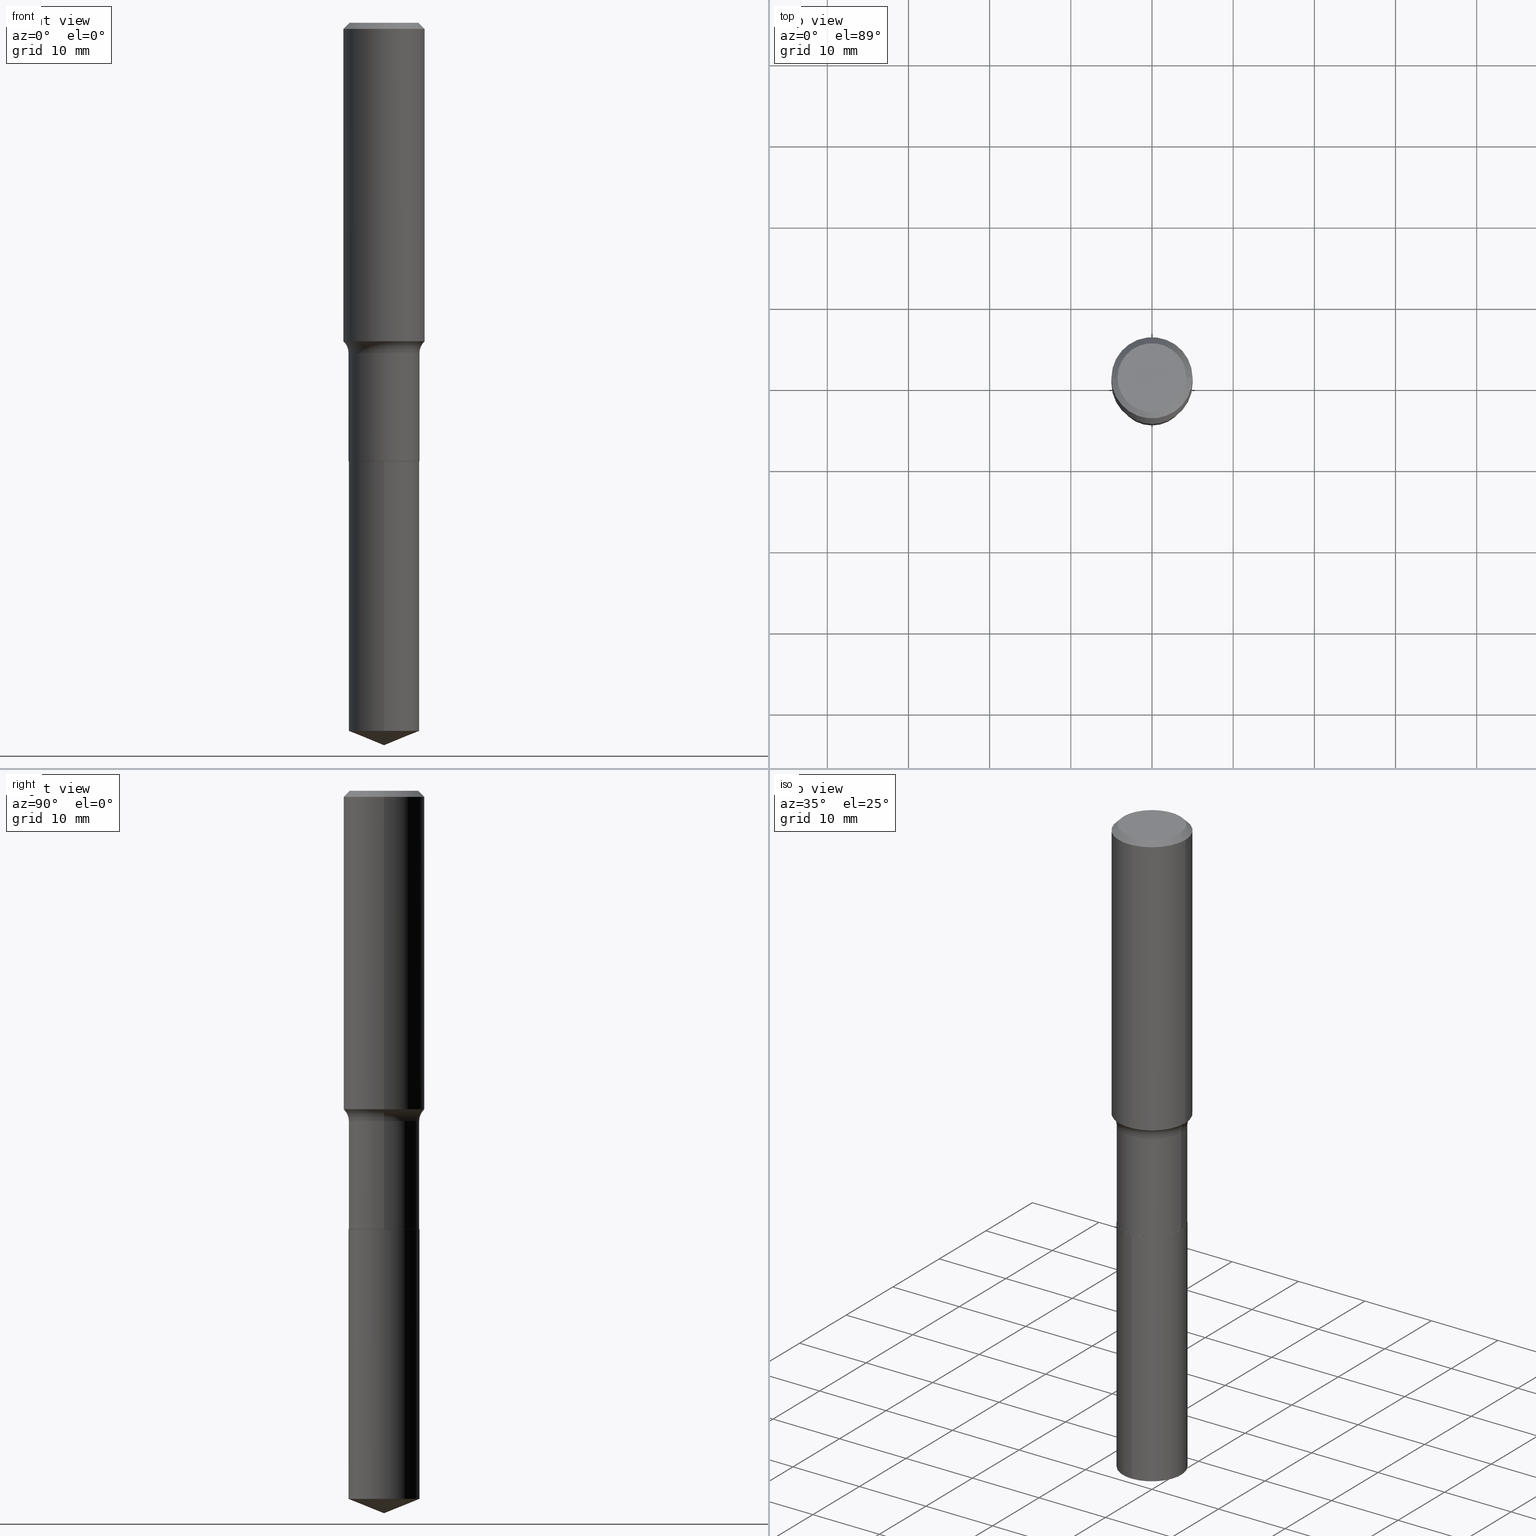
[diagram: canonical four-view strip — front | top / right | iso, engineering-drawing reading convention]
A machine part, canonical four-view strip (front | top / right | iso — engineering-drawing reading convention). The complete STEP part file that produces these views, byte-faithful:
ISO-10303-21;
HEADER;
FILE_DESCRIPTION (( 'STEP AP203' ),
    '1' );
FILE_NAME ('56818.STEP',
    '2024-04-19T14:06:48',
    ( '' ),
    ( '' ),
    'SwSTEP 2.0',
    'SolidWorks 2023',
    '' );
FILE_SCHEMA (( 'CONFIG_CONTROL_DESIGN' ));
ENDSEC;

DATA;
#1 = EDGE_LOOP ( 'NONE', ( #95, #274, #415, #249 ) ) ;
#2 = DATE_TIME_ROLE ( 'classification_date' ) ;
#3 = DIRECTION ( 'NONE',  ( -2.445468806185136597E-29, 3.491481338843145583E-15, 1.000000000000000000 ) ) ;
#4 = SECURITY_CLASSIFICATION_LEVEL ( 'unclassified' ) ;
#5 = EDGE_CURVE ( 'NONE', #108, #154, #196, .T. ) ;
#6 = CIRCLE ( 'NONE', #281, 0.1718999999999999695 ) ;
#7 = TOROIDAL_SURFACE ( 'NONE', #33, 0.2498999999999998722, 0.07799999999999997213 ) ;
#8 = ORIENTED_EDGE ( 'NONE', *, *, #117, .F. ) ;
#9 = PERSON_AND_ORGANIZATION ( #29, #293 ) ;
#10 = EDGE_CURVE ( 'NONE', #80, #401, #70, .T. ) ;
#11 = DIRECTION ( 'NONE',  ( -0.7071067811866199593, 7.493145998870616062E-15, 0.7071067811864750752 ) ) ;
#12 = AXIS2_PLACEMENT_3D ( 'NONE', #192, #3, #82 ) ;
#13 = VECTOR ( 'NONE', #168, 39.37007874015748143 ) ;
#14 = CARTESIAN_POINT ( 'NONE',  ( 3.917396480627969967E-29, -5.593003956692834804E-15, -1.601899999999999880 ) ) ;
#15 = CARTESIAN_POINT ( 'NONE',  ( 7.220858017463212113E-31, -1.030947152326916979E-16, -0.02952750000000020289 ) ) ;
#16 = DIRECTION ( 'NONE',  ( 2.445510554620704519E-29, -3.491421552707238452E-15, -1.000000000000000000 ) ) ;
#17 = LINE ( 'NONE', #321, #172 ) ;
#18 = CARTESIAN_POINT ( 'NONE',  ( 5.198822135068982087E-29, -7.422540178246643119E-15, -2.125899999999999679 ) ) ;
#19 = ORIENTED_EDGE ( 'NONE', *, *, #218, .T. ) ;
#20 = CIRCLE ( 'NONE', #89, 0.07799999999999999989 ) ;
#21 = LINE ( 'NONE', #245, #176 ) ;
#22 = VERTEX_POINT ( 'NONE', #285 ) ;
#23 = EDGE_LOOP ( 'NONE', ( #377, #191, #267, #266 ) ) ;
#24 = CARTESIAN_POINT ( 'NONE',  ( 0.1718999999999999695, -8.621165721871490856E-15, -2.125399999999999956 ) ) ;
#25 = ORIENTED_EDGE ( 'NONE', *, *, #135, .T. ) ;
#26 = CARTESIAN_POINT ( 'NONE',  ( -0.1673224999999999851, 1.219954130253505460E-15, 4.096137381439757534E-18 ) ) ;
#27 = ADVANCED_FACE ( 'NONE', ( #265 ), #484, .T. ) ;
#28 = PERSON_AND_ORGANIZATION ( #29, #293 ) ;
#29 = PERSON ( 'UNSPECIFIED', 'UNSPECIFIED', 'UNSPECIFIED', ('UNSPECIFIED'), ('UNSPECIFIED'), ('UNSPECIFIED') ) ;
#30 = DIRECTION ( 'NONE',  ( 1.000000000000000000, -6.982962677686268288E-15, 4.883557194083112901E-29 ) ) ;
#31 = APPROVAL ( #277, 'UNSPECIFIED' ) ;
#32 = CIRCLE ( 'NONE', #311, 0.07799999999999999989 ) ;
#33 = AXIS2_PLACEMENT_3D ( 'NONE', #14, #425, #88 ) ;
#34 = PERSON_AND_ORGANIZATION_ROLE ( 'creator' ) ;
#35 = DIRECTION ( 'NONE',  ( -6.982962677686266711E-15, -1.000000000000000000, 3.178415350394722068E-15 ) ) ;
#36 = DATE_TIME_ROLE ( 'creation_date' ) ;
#37 = VERTEX_POINT ( 'NONE', #487 ) ;
#38 = ORIENTED_EDGE ( 'NONE', *, *, #226, .F. ) ;
#39 = CC_DESIGN_PERSON_AND_ORGANIZATION_ASSIGNMENT ( #313, #456, ( #361 ) ) ;
#40 = ORIENTED_EDGE ( 'NONE', *, *, #234, .T. ) ;
#41 = FACE_OUTER_BOUND ( 'NONE', #374, .T. ) ;
#42 = VERTEX_POINT ( 'NONE', #227 ) ;
#43 = EDGE_CURVE ( 'NONE', #37, #255, #303, .T. ) ;
#44 = ORIENTED_EDGE ( 'NONE', *, *, #155, .F. ) ;
#45 = APPROVAL_ROLE ( '' ) ;
#46 = AXIS2_PLACEMENT_3D ( 'NONE', #60, #114, #35 ) ;
#47 = DATE_AND_TIME ( #156, #230 ) ;
#48 = EDGE_CURVE ( 'NONE', #153, #395, #440, .T. ) ;
#49 = CYLINDRICAL_SURFACE ( 'NONE', #73, 0.1718999999999999695 ) ;
#50 = DIRECTION ( 'NONE',  ( -2.445468806185136597E-29, 3.491481338843145583E-15, 1.000000000000000000 ) ) ;
#51 = AXIS2_PLACEMENT_3D ( 'NONE', #215, #482, #327 ) ;
#52 = AXIS2_PLACEMENT_3D ( 'NONE', #15, #370, #306 ) ;
#53 = FACE_OUTER_BOUND ( 'NONE', #174, .T. ) ;
#54 = CARTESIAN_POINT ( 'NONE',  ( 0.1673224999999999851, -1.300749711163072594E-15, 4.096137381456741925E-18 ) ) ;
#55 = ADVANCED_FACE ( 'NONE', ( #238 ), #92, .T. ) ;
#56 = ORIENTED_EDGE ( 'NONE', *, *, #310, .T. ) ;
#57 = DIRECTION ( 'NONE',  ( -2.445468806185136597E-29, 3.491481338843145583E-15, 1.000000000000000000 ) ) ;
#58 = EDGE_LOOP ( 'NONE', ( #272, #132 ) ) ;
#59 = CARTESIAN_POINT ( 'NONE',  ( 5.198822135068982087E-29, -7.422540178246643119E-15, -2.125899999999999679 ) ) ;
#60 = CARTESIAN_POINT ( 'NONE',  ( 5.198822135068982087E-29, -7.422540178246643119E-15, -2.125899999999999679 ) ) ;
#61 = FACE_OUTER_BOUND ( 'NONE', #66, .T. ) ;
#62 = AXIS2_PLACEMENT_3D ( 'NONE', #280, #287, #242 ) ;
#63 = CONICAL_SURFACE ( 'NONE', #463, 0.1968500000000000527, 0.7853981633974457255 ) ;
#64 = CARTESIAN_POINT ( 'NONE',  ( 8.398889815641044557E-29, -1.199123249035324259E-14, -3.434447891778936945 ) ) ;
#65 = EDGE_LOOP ( 'NONE', ( #19, #345, #216, #231 ) ) ;
#66 = EDGE_LOOP ( 'NONE', ( #460, #435, #369, #183 ) ) ;
#67 = CARTESIAN_POINT ( 'NONE',  ( -1.001697619218021790E-46, 1.430158722866389718E-32, 4.096137381448108366E-18 ) ) ;
#68 = FACE_OUTER_BOUND ( 'NONE', #23, .T. ) ;
#69 = DIRECTION ( 'NONE',  ( 1.000000000000000000, -6.982962677686266711E-15, 0.000000000000000000 ) ) ;
#70 = CIRCLE ( 'NONE', #422, 0.1718999999999999140 ) ;
#71 = EDGE_CURVE ( 'NONE', #401, #80, #170, .T. ) ;
#72 = CONICAL_SURFACE ( 'NONE', #52, 0.1968500000000000527, 0.7853981633974457255 ) ;
#73 = AXIS2_PLACEMENT_3D ( 'NONE', #163, #319, #203 ) ;
#74 = DIRECTION ( 'NONE',  ( 0.000000000000000000, 0.000000000000000000, 1.000000000000000000 ) ) ;
#75 = DIRECTION ( 'NONE',  ( 1.000000000000000000, 0.000000000000000000, 0.000000000000000000 ) ) ;
#76 =( LENGTH_UNIT ( ) NAMED_UNIT ( * ) SI_UNIT ( $, .METRE. ) );
#77 = ORIENTED_EDGE ( 'NONE', *, *, #71, .F. ) ;
#78 = CONICAL_SURFACE ( 'NONE', #351, 97.44436430772920232, 1.186823891356147742 ) ;
#79 = ADVANCED_FACE ( 'NONE', ( #462 ), #396, .T. ) ;
#80 = VERTEX_POINT ( 'NONE', #159 ) ;
#81 = ADVANCED_FACE ( 'NONE', ( #41 ), #78, .T. ) ;
#82 = DIRECTION ( 'NONE',  ( 1.000000000000000000, -6.982962677686265133E-15, 0.000000000000000000 ) ) ;
#83 = DIRECTION ( 'NONE',  ( 0.7071067811865456854, -7.319954787623249734E-15, -0.7071067811865493491 ) ) ;
#84 = VERTEX_POINT ( 'NONE', #54 ) ;
#85 = AXIS2_PLACEMENT_3D ( 'NONE', #469, #473, #130 ) ;
#86 = DIRECTION ( 'NONE',  ( -6.982962677686266711E-15, -1.000000000000000000, 3.178415350394722068E-15 ) ) ;
#87 = CARTESIAN_POINT ( 'NONE',  ( 3.777561471513221514E-29, -5.393356623794430773E-15, -1.544718731213796659 ) ) ;
#88 = DIRECTION ( 'NONE',  ( 1.000000000000000000, -6.982962677686268288E-15, 4.883557194083112901E-29 ) ) ;
#89 = AXIS2_PLACEMENT_3D ( 'NONE', #466, #468, #320 ) ;
#90 = ADVANCED_FACE ( 'NONE', ( #485 ), #358, .F. ) ;
#91 = DIRECTION ( 'NONE',  ( 1.000000000000000000, -6.982962677686265922E-15, 0.000000000000000000 ) ) ;
#92 = CYLINDRICAL_SURFACE ( 'NONE', #222, 0.1968500000000001082 ) ;
#93 = CARTESIAN_POINT ( 'NONE',  ( 0.1968500000000001082, -1.374596203102542397E-15, 9.598753983154305062E-30 ) ) ;
#94 = DIRECTION ( 'NONE',  ( -2.445468806185136597E-29, 3.491481338843145583E-15, 1.000000000000000000 ) ) ;
#95 = ORIENTED_EDGE ( 'NONE', *, *, #331, .T. ) ;
#96 = ADVANCED_FACE ( 'NONE', ( #326 ), #417, .F. ) ;
#97 = CARTESIAN_POINT ( 'NONE',  ( -1.200371284294217176E-15, -0.1719000000000073802, -2.125899999999999235 ) ) ;
#98 = CARTESIAN_POINT ( 'NONE',  ( 3.917396480627969967E-29, -5.593003956692834804E-15, -1.601899999999999880 ) ) ;
#99 = AXIS2_PLACEMENT_3D ( 'NONE', #241, #50, #205 ) ;
#100 = CIRCLE ( 'NONE', #150, 0.1713999999999999690 ) ;
#101 = PERSON_AND_ORGANIZATION ( #29, #293 ) ;
#102 = CARTESIAN_POINT ( 'NONE',  ( 0.000000000000000000, 0.000000000000000000, 0.000000000000000000 ) ) ;
#103 = DATE_AND_TIME ( #486, #291 ) ;
#104 = VECTOR ( 'NONE', #197, 39.37007874015748143 ) ;
#105 =( GEOMETRIC_REPRESENTATION_CONTEXT ( 3 ) GLOBAL_UNCERTAINTY_ASSIGNED_CONTEXT ( ( #444 ) ) GLOBAL_UNIT_ASSIGNED_CONTEXT ( ( #302, #109, #182 ) ) REPRESENTATION_CONTEXT ( 'NONE', 'WORKASPACE' ) );
#106 = CARTESIAN_POINT ( 'NONE',  ( 5.197599400665889285E-29, -7.420794437577220826E-15, -2.125399999999999956 ) ) ;
#107 = DATE_AND_TIME ( #445, #408 ) ;
#108 = VERTEX_POINT ( 'NONE', #24 ) ;
#109 =( NAMED_UNIT ( * ) PLANE_ANGLE_UNIT ( ) SI_UNIT ( $, .RADIAN. ) );
#110 = ORIENTED_EDGE ( 'NONE', *, *, #184, .T. ) ;
#111 = ORIENTED_EDGE ( 'NONE', *, *, #305, .T. ) ;
#112 = EDGE_CURVE ( 'NONE', #200, #42, #360, .T. ) ;
#113 = CIRCLE ( 'NONE', #379, 0.1968500000000000527 ) ;
#114 = DIRECTION ( 'NONE',  ( -2.445510554620705079E-29, 3.491421552707238058E-15, 1.000000000000000000 ) ) ;
#115 = EDGE_LOOP ( 'NONE', ( #411, #399 ) ) ;
#116 = LINE ( 'NONE', #275, #186 ) ;
#117 = EDGE_CURVE ( 'NONE', #307, #284, #6, .T. ) ;
#118 = ORIENTED_EDGE ( 'NONE', *, *, #48, .F. ) ;
#119 = ORIENTED_EDGE ( 'NONE', *, *, #355, .F. ) ;
#120 = DIRECTION ( 'NONE',  ( -2.445468806185136597E-29, 3.491481338843145583E-15, 1.000000000000000000 ) ) ;
#121 = AXIS2_PLACEMENT_3D ( 'NONE', #474, #409, #86 ) ;
#122 = CC_DESIGN_APPROVAL ( #398, ( #441 ) ) ;
#123 = CARTESIAN_POINT ( 'NONE',  ( 1.221422962771696016E-15, 0.1718999999999925588, -2.125900000000000567 ) ) ;
#124 = CARTESIAN_POINT ( 'NONE',  ( 8.568825988853564616E-29, -1.223359197853089063E-14, -3.503899999999999793 ) ) ;
#125 = DIRECTION ( 'NONE',  ( -0.7071067811865456854, 2.468850131082237733E-15, -0.7071067811865493491 ) ) ;
#126 = DIRECTION ( 'NONE',  ( -2.445510554620705079E-29, 3.491421552707238058E-15, 1.000000000000000000 ) ) ;
#127 = CARTESIAN_POINT ( 'NONE',  ( 0.000000000000000000, 0.000000000000000000, 0.000000000000000000 ) ) ;
#128 = APPROVAL ( #175, 'UNSPECIFIED' ) ;
#129 = CLOSED_SHELL ( 'NONE', ( #424, #344, #81, #27, #146 ) ) ;
#130 = DIRECTION ( 'NONE',  ( 1.000000000000000000, -6.982962677686265922E-15, 0.000000000000000000 ) ) ;
#131 = CC_DESIGN_APPROVAL ( #128, ( #138 ) ) ;
#132 = ORIENTED_EDGE ( 'NONE', *, *, #209, .T. ) ;
#133 = FACE_OUTER_BOUND ( 'NONE', #58, .T. ) ;
#134 = ORIENTED_EDGE ( 'NONE', *, *, #375, .T. ) ;
#135 = EDGE_CURVE ( 'NONE', #395, #200, #330, .T. ) ;
#136 = LINE ( 'NONE', #165, #318 ) ;
#137 = ORIENTED_EDGE ( 'NONE', *, *, #5, .T. ) ;
#138 = PRODUCT_DEFINITION ( 'UNKNOWN', '', #441, #434 ) ;
#139 = PLANE ( 'NONE',  #407 ) ;
#140 = DIRECTION ( 'NONE',  ( -2.445468806185136597E-29, 3.491481338843145583E-15, 1.000000000000000000 ) ) ;
#141 = EDGE_LOOP ( 'NONE', ( #111, #438, #492, #371 ) ) ;
#142 = ORIENTED_EDGE ( 'NONE', *, *, #282, .F. ) ;
#143 = CC_DESIGN_APPROVAL ( #31, ( #361 ) ) ;
#144 = COORDINATED_UNIVERSAL_TIME_OFFSET ( 5, 0, .BEHIND. ) ;
#145 = CARTESIAN_POINT ( 'NONE',  ( 0.000000000000000000, 0.000000000000000000, 0.000000000000000000 ) ) ;
#146 = ADVANCED_FACE ( 'NONE', ( #481 ), #139, .F. ) ;
#147 = CARTESIAN_POINT ( 'NONE',  ( -0.1718999999999999695, -5.285476234363415221E-15, -2.125399999999999956 ) ) ;
#148 = APPROVAL_ROLE ( '' ) ;
#149 = EDGE_LOOP ( 'NONE', ( #119, #134, #483, #229 ) ) ;
#150 = AXIS2_PLACEMENT_3D ( 'NONE', #59, #288, #325 ) ;
#151 = APPROVAL_ROLE ( '' ) ;
#152 = APPLICATION_CONTEXT ( 'configuration controlled 3d designs of mechanical parts and assemblies' ) ;
#153 = VERTEX_POINT ( 'NONE', #179 ) ;
#154 = VERTEX_POINT ( 'NONE', #147 ) ;
#155 = EDGE_CURVE ( 'NONE', #348, #37, #201, .T. ) ;
#156 = CALENDAR_DATE ( 2024, 19, 4 ) ;
#157 = ORIENTED_EDGE ( 'NONE', *, *, #404, .T. ) ;
#158 = EDGE_CURVE ( 'NONE', #84, #200, #116, .T. ) ;
#159 = CARTESIAN_POINT ( 'NONE',  ( -0.1718999999999999140, -5.285476234363416009E-15, -1.601899999999999880 ) ) ;
#160 = ORIENTED_EDGE ( 'NONE', *, *, #331, .F. ) ;
#161 = DIRECTION ( 'NONE',  ( -2.445510554620705079E-29, 3.491421552707238058E-15, 1.000000000000000000 ) ) ;
#162 = DIMENSIONAL_EXPONENTS ( 1.000000000000000000, 0.000000000000000000, 0.000000000000000000, 0.000000000000000000, 0.000000000000000000, 0.000000000000000000, 0.000000000000000000 ) ;
#163 = CARTESIAN_POINT ( 'NONE',  ( 5.198822135068982087E-29, -7.422540178246643119E-15, -2.125899999999999679 ) ) ;
#164 = ADVANCED_FACE ( 'NONE', ( #219 ), #195, .T. ) ;
#165 = CARTESIAN_POINT ( 'NONE',  ( -1.200371284294217176E-15, -0.1719000000000073802, -2.125899999999999235 ) ) ;
#166 = ORIENTED_EDGE ( 'NONE', *, *, #259, .T. ) ;
#167 = LINE ( 'NONE', #353, #187 ) ;
#168 = DIRECTION ( 'NONE',  ( -2.445468806185136877E-29, 3.491481338843145188E-15, 1.000000000000000000 ) ) ;
#169 = DIRECTION ( 'NONE',  ( 1.000000000000000000, -6.982962677686265922E-15, 4.876176775795935793E-29 ) ) ;
#170 = CIRCLE ( 'NONE', #62, 0.1718999999999999140 ) ;
#171 = EDGE_CURVE ( 'NONE', #108, #401, #180, .T. ) ;
#172 = VECTOR ( 'NONE', #11, 39.37007874015748143 ) ;
#173 = DIRECTION ( 'NONE',  ( 0.7071067811866199593, -2.468850131083015945E-15, 0.7071067811864750752 ) ) ;
#174 = EDGE_LOOP ( 'NONE', ( #316, #364, #157, #110 ) ) ;
#175 = APPROVAL_STATUS ( 'not_yet_approved' ) ;
#176 = VECTOR ( 'NONE', #125, 39.37007874015748143 ) ;
#177 = EDGE_CURVE ( 'NONE', #284, #307, #270, .T. ) ;
#178 = APPROVAL_DATE_TIME ( #107, #128 ) ;
#179 = CARTESIAN_POINT ( 'NONE',  ( -0.1968500000000002192, -3.994653248450672985E-15, -1.544718731213796659 ) ) ;
#180 = LINE ( 'NONE', #193, #104 ) ;
#181 = EDGE_LOOP ( 'NONE', ( #221, #439 ) ) ;
#182 =( NAMED_UNIT ( * ) SI_UNIT ( $, .STERADIAN. ) SOLID_ANGLE_UNIT ( ) );
#183 = ORIENTED_EDGE ( 'NONE', *, *, #10, .F. ) ;
#184 = EDGE_CURVE ( 'NONE', #42, #200, #113, .T. ) ;
#185 = ORIENTED_EDGE ( 'NONE', *, *, #305, .F. ) ;
#186 = VECTOR ( 'NONE', #83, 39.37007874015748143 ) ;
#187 = VECTOR ( 'NONE', #387, 39.37007874015748143 ) ;
#188 = DATE_AND_TIME ( #194, #478 ) ;
#189 = DIRECTION ( 'NONE',  ( -2.445468806185136597E-29, 3.491481338843145583E-15, 1.000000000000000000 ) ) ;
#190 = CARTESIAN_POINT ( 'NONE',  ( -8.771120741596703317E-28, 1.252238223672896506E-13, 35.86617874015747987 ) ) ;
#191 = ORIENTED_EDGE ( 'NONE', *, *, #158, .T. ) ;
#192 = CARTESIAN_POINT ( 'NONE',  ( 5.198822135068982087E-29, -7.422540178246643119E-15, -2.125899999999999679 ) ) ;
#193 = CARTESIAN_POINT ( 'NONE',  ( 0.1718999999999999417, -1.200371284294268847E-15, 8.382147877593211677E-30 ) ) ;
#194 = CALENDAR_DATE ( 2024, 19, 4 ) ;
#195 = CYLINDRICAL_SURFACE ( 'NONE', #335, 0.1968500000000001082 ) ;
#196 = CIRCLE ( 'NONE', #99, 0.1718999999999999695 ) ;
#197 = DIRECTION ( 'NONE',  ( -2.445468806185136877E-29, 3.491481338843145188E-15, 1.000000000000000000 ) ) ;
#198 = SHAPE_DEFINITION_REPRESENTATION ( #432, #268 ) ;
#199 = CARTESIAN_POINT ( 'NONE',  ( 0.000000000000000000, 0.000000000000000000, 0.000000000000000000 ) ) ;
#200 = VERTEX_POINT ( 'NONE', #279 ) ;
#201 = LINE ( 'NONE', #124, #324 ) ;
#202 = CLOSED_SHELL ( 'NONE', ( #79, #457, #55, #436, #464, #273, #96, #164, #451, #393, #90, #294 ) ) ;
#203 = DIRECTION ( 'NONE',  ( -6.982962677686266711E-15, -1.000000000000000000, 3.178415350394722068E-15 ) ) ;
#204 = AXIS2_PLACEMENT_3D ( 'NONE', #145, #372, #334 ) ;
#205 = DIRECTION ( 'NONE',  ( 1.000000000000000000, -6.982962677686268288E-15, 0.000000000000000000 ) ) ;
#206 = ORIENTED_EDGE ( 'NONE', *, *, #184, .F. ) ;
#207 = CC_DESIGN_DATE_AND_TIME_ASSIGNMENT ( #103, #36, ( #138 ) ) ;
#208 = CARTESIAN_POINT ( 'NONE',  ( 8.568824432335487934E-29, -1.223359197853089063E-14, -3.503899999999999793 ) ) ;
#209 = EDGE_CURVE ( 'NONE', #84, #455, #385, .T. ) ;
#210 = DIRECTION ( 'NONE',  ( -6.982962677686266711E-15, -1.000000000000000000, 3.178415350394722068E-15 ) ) ;
#211 = EDGE_LOOP ( 'NONE', ( #308, #160, #40, #233 ) ) ;
#212 = DIRECTION ( 'NONE',  ( 2.438088387897960049E-29, -3.491481338843145188E-15, -1.000000000000000000 ) ) ;
#213 = APPROVAL_PERSON_ORGANIZATION ( #28, #128, #151 ) ;
#214 = DIRECTION ( 'NONE',  ( -2.445510554620705079E-29, 3.491421552707238058E-15, 1.000000000000000000 ) ) ;
#215 = CARTESIAN_POINT ( 'NONE',  ( 7.220858017463212113E-31, -1.030947152326916979E-16, -0.02952750000000020289 ) ) ;
#216 = ORIENTED_EDGE ( 'NONE', *, *, #5, .F. ) ;
#217 = CARTESIAN_POINT ( 'NONE',  ( 7.220858017463212113E-31, -1.030947152326916979E-16, -0.02952750000000020289 ) ) ;
#218 = EDGE_CURVE ( 'NONE', #354, #22, #341, .T. ) ;
#219 = FACE_OUTER_BOUND ( 'NONE', #421, .T. ) ;
#220 = AXIS2_PLACEMENT_3D ( 'NONE', #127, #357, #480 ) ;
#221 = ORIENTED_EDGE ( 'NONE', *, *, #177, .T. ) ;
#222 = AXIS2_PLACEMENT_3D ( 'NONE', #199, #459, #237 ) ;
#223 = CIRCLE ( 'NONE', #449, 0.1968500000000002192 ) ;
#224 = ORIENTED_EDGE ( 'NONE', *, *, #226, .T. ) ;
#225 = CALENDAR_DATE ( 2024, 19, 4 ) ;
#226 = EDGE_CURVE ( 'NONE', #348, #255, #476, .T. ) ;
#227 = CARTESIAN_POINT ( 'NONE',  ( -0.1968500000000000527, -1.349522294169803047E-15, -0.02952750000000020289 ) ) ;
#228 = ORIENTED_EDGE ( 'NONE', *, *, #155, .T. ) ;
#229 = ORIENTED_EDGE ( 'NONE', *, *, #263, .F. ) ;
#230 = LOCAL_TIME ( 10, 6, 48.00000000000000000, #232 ) ;
#231 = ORIENTED_EDGE ( 'NONE', *, *, #412, .F. ) ;
#232 = COORDINATED_UNIVERSAL_TIME_OFFSET ( 5, 0, .BEHIND. ) ;
#233 = ORIENTED_EDGE ( 'NONE', *, *, #71, .T. ) ;
#234 = EDGE_CURVE ( 'NONE', #395, #401, #32, .T. ) ;
#235 = AXIS2_PLACEMENT_3D ( 'NONE', #315, #257, #328 ) ;
#236 = VECTOR ( 'NONE', #173, 39.37007874015748143 ) ;
#237 = DIRECTION ( 'NONE',  ( 1.000000000000000000, -6.982962677686266711E-15, 4.876176775795935793E-29 ) ) ;
#238 = FACE_OUTER_BOUND ( 'NONE', #1, .T. ) ;
#239 = FACE_OUTER_BOUND ( 'NONE', #269, .T. ) ;
#240 = CC_DESIGN_PERSON_AND_ORGANIZATION_ASSIGNMENT ( #418, #373, ( #441 ) ) ;
#241 = CARTESIAN_POINT ( 'NONE',  ( 5.197599400665889285E-29, -7.420794437577220826E-15, -2.125399999999999956 ) ) ;
#242 = DIRECTION ( 'NONE',  ( 1.000000000000000000, -6.982962677686264344E-15, 0.000000000000000000 ) ) ;
#243 = DIRECTION ( 'NONE',  ( 1.000000000000000000, -6.982962677686265133E-15, 0.000000000000000000 ) ) ;
#244 = AXIS2_PLACEMENT_3D ( 'NONE', #98, #366, #30 ) ;
#245 = CARTESIAN_POINT ( 'NONE',  ( -0.1968500000000000527, 1.271501487869850317E-15, -0.02952750000000020289 ) ) ;
#246 = DIRECTION ( 'NONE',  ( -6.982962677686265922E-15, -1.000000000000000000, 3.498761904101799553E-15 ) ) ;
#247 = CONICAL_SURFACE ( 'NONE', #271, 0.1713999999999999690, 0.7853981633975507526 ) ;
#248 = CARTESIAN_POINT ( 'NONE',  ( 0.1713999999999999690, -8.619419981202068564E-15, -2.125899999999999679 ) ) ;
#249 = ORIENTED_EDGE ( 'NONE', *, *, #135, .F. ) ;
#250 = CC_DESIGN_PERSON_AND_ORGANIZATION_ASSIGNMENT ( #9, #378, ( #441 ) ) ;
#251 = DIRECTION ( 'NONE',  ( 1.000000000000000000, -6.982962677686265133E-15, 0.000000000000000000 ) ) ;
#252 = DIRECTION ( 'NONE',  ( -2.445510554620705079E-29, 3.491421552707238058E-15, 1.000000000000000000 ) ) ;
#253 = LINE ( 'NONE', #431, #289 ) ;
#254 = AXIS2_PLACEMENT_3D ( 'NONE', #106, #189, #488 ) ;
#255 = VERTEX_POINT ( 'NONE', #443 ) ;
#256 = AXIS2_PLACEMENT_3D ( 'NONE', #390, #429, #397 ) ;
#257 = DIRECTION ( 'NONE',  ( -2.445468806185136597E-29, 3.491481338843145583E-15, 1.000000000000000000 ) ) ;
#258 = PERSON_AND_ORGANIZATION_ROLE ( 'design_owner' ) ;
#259 = EDGE_CURVE ( 'NONE', #153, #80, #20, .T. ) ;
#260 = DIRECTION ( 'NONE',  ( -2.445468806185136597E-29, 3.491481338843145583E-15, 1.000000000000000000 ) ) ;
#261 = DIRECTION ( 'NONE',  ( 2.445468806185136597E-29, -3.491481338843145583E-15, -1.000000000000000000 ) ) ;
#262 = CC_DESIGN_SECURITY_CLASSIFICATION ( #361, ( #441 ) ) ;
#263 = EDGE_CURVE ( 'NONE', #154, #108, #368, .T. ) ;
#264 = COORDINATED_UNIVERSAL_TIME_OFFSET ( 5, 0, .BEHIND. ) ;
#265 = FACE_OUTER_BOUND ( 'NONE', #392, .T. ) ;
#266 = ORIENTED_EDGE ( 'NONE', *, *, #404, .F. ) ;
#267 = ORIENTED_EDGE ( 'NONE', *, *, #112, .T. ) ;
#268 = ADVANCED_BREP_SHAPE_REPRESENTATION ( '56818', ( #384, #382, #376 ), #105 ) ;
#269 = EDGE_LOOP ( 'NONE', ( #38, #228, #185 ) ) ;
#270 = CIRCLE ( 'NONE', #448, 0.1718999999999999695 ) ;
#271 = AXIS2_PLACEMENT_3D ( 'NONE', #465, #57, #251 ) ;
#272 = ORIENTED_EDGE ( 'NONE', *, *, #472, .T. ) ;
#273 = ADVANCED_FACE ( 'NONE', ( #61 ), #349, .T. ) ;
#274 = ORIENTED_EDGE ( 'NONE', *, *, #282, .T. ) ;
#275 = CARTESIAN_POINT ( 'NONE',  ( 0.1968500000000000527, -1.453583746094018101E-15, -0.02952750000000020289 ) ) ;
#276 = CARTESIAN_POINT ( 'NONE',  ( 5.198822135068982087E-29, -7.422540178246643119E-15, -2.125899999999999679 ) ) ;
#277 = APPROVAL_STATUS ( 'not_yet_approved' ) ;
#278 = ORIENTED_EDGE ( 'NONE', *, *, #446, .F. ) ;
#279 = CARTESIAN_POINT ( 'NONE',  ( 0.1968500000000000527, -1.477690918335233688E-15, -0.02952750000000020289 ) ) ;
#280 = CARTESIAN_POINT ( 'NONE',  ( 3.917396480627969967E-29, -5.593003956692834804E-15, -1.601899999999999880 ) ) ;
#281 = AXIS2_PLACEMENT_3D ( 'NONE', #475, #252, #430 ) ;
#282 = EDGE_CURVE ( 'NONE', #153, #42, #253, .T. ) ;
#283 = ORIENTED_EDGE ( 'NONE', *, *, #48, .T. ) ;
#284 = VERTEX_POINT ( 'NONE', #97 ) ;
#285 = CARTESIAN_POINT ( 'NONE',  ( -0.1713999999999999690, -6.202020701979720222E-15, -2.125899999999999679 ) ) ;
#286 = CARTESIAN_POINT ( 'NONE',  ( 0.1713999999999999690, -8.619419981202068564E-15, -2.125899999999999679 ) ) ;
#287 = DIRECTION ( 'NONE',  ( -2.445468806185136597E-29, 3.491481338843145583E-15, 1.000000000000000000 ) ) ;
#288 = DIRECTION ( 'NONE',  ( -2.445468806185136597E-29, 3.491481338843145583E-15, 1.000000000000000000 ) ) ;
#289 = VECTOR ( 'NONE', #479, 39.37007874015748143 ) ;
#290 = DIRECTION ( 'NONE',  ( -6.474490251793184940E-15, -0.9271838545667873133, 0.3746065934159118482 ) ) ;
#291 = LOCAL_TIME ( 10, 6, 48.00000000000000000, #338 ) ;
#292 = CARTESIAN_POINT ( 'NONE',  ( -0.1718999999999999417, 1.221422962771611806E-15, -8.455649420148180377E-30 ) ) ;
#293 = ORGANIZATION ( 'UNSPECIFIED', 'UNSPECIFIED', '' ) ;
#294 = ADVANCED_FACE ( 'NONE', ( #471 ), #247, .T. ) ;
#295 = DIRECTION ( 'NONE',  ( -6.982962677686266711E-15, -1.000000000000000000, 3.491481338843145583E-15 ) ) ;
#296 = PLANE ( 'NONE',  #312 ) ;
#297 = DIRECTION ( 'NONE',  ( -2.445468806185136597E-29, 3.491481338843145583E-15, 1.000000000000000000 ) ) ;
#298 = CARTESIAN_POINT ( 'NONE',  ( 8.568646926337138568E-29, -1.223384617722354142E-14, -3.503899999999999793 ) ) ;
#299 = FACE_OUTER_BOUND ( 'NONE', #141, .T. ) ;
#300 = ORIENTED_EDGE ( 'NONE', *, *, #10, .T. ) ;
#301 = DIRECTION ( 'NONE',  ( -6.982962677686266711E-15, -1.000000000000000000, 3.178415350394722068E-15 ) ) ;
#302 =( CONVERSION_BASED_UNIT ( 'INCH', #490 ) LENGTH_UNIT ( ) NAMED_UNIT ( #162 ) );
#303 = CIRCLE ( 'NONE', #121, 0.1718999999999999695 ) ;
#304 = LOCAL_TIME ( 10, 6, 48.00000000000000000, #264 ) ;
#305 = EDGE_CURVE ( 'NONE', #255, #37, #428, .T. ) ;
#306 = DIRECTION ( 'NONE',  ( -1.000000000000000000, 6.982962677686266711E-15, 0.000000000000000000 ) ) ;
#307 = VERTEX_POINT ( 'NONE', #123 ) ;
#308 = ORIENTED_EDGE ( 'NONE', *, *, #259, .F. ) ;
#309 = CARTESIAN_POINT ( 'NONE',  ( 3.917396480627969967E-29, -5.593003956692834804E-15, -1.601899999999999880 ) ) ;
#310 = EDGE_CURVE ( 'NONE', #255, #284, #136, .T. ) ;
#311 = AXIS2_PLACEMENT_3D ( 'NONE', #389, #295, #350 ) ;
#312 = AXIS2_PLACEMENT_3D ( 'NONE', #467, #212, #329 ) ;
#313 = PERSON_AND_ORGANIZATION ( #29, #293 ) ;
#314 = DIRECTION ( 'NONE',  ( 6.588037525764799179E-15, 0.9271838545667900888, 0.3746065934159054645 ) ) ;
#315 = CARTESIAN_POINT ( 'NONE',  ( -1.001697619218021790E-46, 1.430158722866389718E-32, 4.096137381448108366E-18 ) ) ;
#316 = ORIENTED_EDGE ( 'NONE', *, *, #158, .F. ) ;
#317 = COORDINATED_UNIVERSAL_TIME_OFFSET ( 5, 0, .BEHIND. ) ;
#318 = VECTOR ( 'NONE', #423, 39.37007874015748143 ) ;
#319 = DIRECTION ( 'NONE',  ( -2.445510554620705079E-29, 3.491421552707238058E-15, 1.000000000000000000 ) ) ;
#320 = DIRECTION ( 'NONE',  ( -1.000000000000000000, 7.105427357600997914E-15, 0.000000000000000000 ) ) ;
#321 = CARTESIAN_POINT ( 'NONE',  ( -0.1713999999999999690, -6.204669929153830634E-15, -2.125899999999999679 ) ) ;
#322 = CARTESIAN_POINT ( 'NONE',  ( 5.198822135068982087E-29, -7.422540178246643119E-15, -2.125899999999999679 ) ) ;
#323 = DIRECTION ( 'NONE',  ( 6.982962677686265922E-15, 1.000000000000000000, -3.491421552707238452E-15 ) ) ;
#324 = VECTOR ( 'NONE', #314, 39.37007874015748143 ) ;
#325 = DIRECTION ( 'NONE',  ( 1.000000000000000000, -6.982962677686265133E-15, 0.000000000000000000 ) ) ;
#326 = FACE_OUTER_BOUND ( 'NONE', #211, .T. ) ;
#327 = DIRECTION ( 'NONE',  ( 1.000000000000000000, -6.982962677686266711E-15, 0.000000000000000000 ) ) ;
#328 = DIRECTION ( 'NONE',  ( 1.000000000000000000, -6.982962677686267499E-15, 4.876294436782262290E-29 ) ) ;
#329 = DIRECTION ( 'NONE',  ( -1.000000000000000000, 6.982962677686265922E-15, -4.876176775795935793E-29 ) ) ;
#330 = LINE ( 'NONE', #93, #477 ) ;
#331 = EDGE_CURVE ( 'NONE', #395, #153, #223, .T. ) ;
#332 = DIRECTION ( 'NONE',  ( 1.000000000000000000, -6.982962677686267499E-15, 4.876294436782262290E-29 ) ) ;
#333 = CC_DESIGN_PERSON_AND_ORGANIZATION_ASSIGNMENT ( #101, #258, ( #381 ) ) ;
#334 = DIRECTION ( 'NONE',  ( 1.000000000000000000, -6.982962677686266711E-15, 4.876176775795936353E-29 ) ) ;
#335 = AXIS2_PLACEMENT_3D ( 'NONE', #102, #260, #337 ) ;
#336 = CONICAL_SURFACE ( 'NONE', #256, 97.44436430772920232, 1.186823891356147742 ) ;
#337 = DIRECTION ( 'NONE',  ( 1.000000000000000000, -6.982962677686266711E-15, 4.876176775795935793E-29 ) ) ;
#338 = COORDINATED_UNIVERSAL_TIME_OFFSET ( 5, 0, .BEHIND. ) ;
#339 = PERSON_AND_ORGANIZATION ( #29, #293 ) ;
#340 = DATE_AND_TIME ( #225, #304 ) ;
#341 = CIRCLE ( 'NONE', #461, 0.1713999999999999690 ) ;
#342 = APPROVAL_PERSON_ORGANIZATION ( #339, #398, #148 ) ;
#343 = APPROVAL_DATE_TIME ( #188, #31 ) ;
#344 = ADVANCED_FACE ( 'NONE', ( #239 ), #336, .T. ) ;
#345 = ORIENTED_EDGE ( 'NONE', *, *, #355, .T. ) ;
#346 = ORIENTED_EDGE ( 'NONE', *, *, #171, .F. ) ;
#347 = VECTOR ( 'NONE', #290, 39.37007874015748854 ) ;
#348 = VERTEX_POINT ( 'NONE', #208 ) ;
#349 = CYLINDRICAL_SURFACE ( 'NONE', #220, 0.1718999999999999417 ) ;
#350 = DIRECTION ( 'NONE',  ( 1.000000000000000000, -6.982962677686270655E-15, 0.000000000000000000 ) ) ;
#351 = AXIS2_PLACEMENT_3D ( 'NONE', #190, #126, #246 ) ;
#352 = AXIS2_PLACEMENT_3D ( 'NONE', #67, #140, #332 ) ;
#353 = CARTESIAN_POINT ( 'NONE',  ( 1.221422962771663673E-15, 0.1718999999999925588, -2.125900000000000567 ) ) ;
#354 = VERTEX_POINT ( 'NONE', #248 ) ;
#355 = EDGE_CURVE ( 'NONE', #22, #154, #17, .T. ) ;
#356 = CARTESIAN_POINT ( 'NONE',  ( 0.1968500000000002192, -6.767952826896974748E-15, -1.544718731213796659 ) ) ;
#357 = DIRECTION ( 'NONE',  ( -2.445468806185136597E-29, 3.491481338843145583E-15, 1.000000000000000000 ) ) ;
#358 = PLANE ( 'NONE',  #491 ) ;
#359 = ORIENTED_EDGE ( 'NONE', *, *, #43, .T. ) ;
#360 = CIRCLE ( 'NONE', #51, 0.1968500000000000527 ) ;
#361 = SECURITY_CLASSIFICATION ( '', '', #4 ) ;
#362 = CARTESIAN_POINT ( 'NONE',  ( 0.1718999999999999140, -6.793375240987103256E-15, -1.601899999999999880 ) ) ;
#363 = EDGE_CURVE ( 'NONE', #154, #80, #394, .T. ) ;
#364 = ORIENTED_EDGE ( 'NONE', *, *, #472, .F. ) ;
#365 = APPLICATION_PROTOCOL_DEFINITION ( 'international standard', 'config_control_design', 1994, #433 ) ;
#366 = DIRECTION ( 'NONE',  ( -2.445468806185136597E-29, 3.491481338843145583E-15, 1.000000000000000000 ) ) ;
#367 = CARTESIAN_POINT ( 'NONE',  ( 0.000000000000000000, 0.000000000000000000, 0.000000000000000000 ) ) ;
#368 = CIRCLE ( 'NONE', #254, 0.1718999999999999695 ) ;
#369 = ORIENTED_EDGE ( 'NONE', *, *, #171, .T. ) ;
#370 = DIRECTION ( 'NONE',  ( 2.445468806185136597E-29, -3.491481338843145583E-15, -1.000000000000000000 ) ) ;
#371 = ORIENTED_EDGE ( 'NONE', *, *, #310, .F. ) ;
#372 = DIRECTION ( 'NONE',  ( -2.445468806185136597E-29, 3.491481338843145583E-15, 1.000000000000000000 ) ) ;
#373 = PERSON_AND_ORGANIZATION_ROLE ( 'design_supplier' ) ;
#374 = EDGE_LOOP ( 'NONE', ( #44, #224, #458 ) ) ;
#375 = EDGE_CURVE ( 'NONE', #22, #354, #100, .T. ) ;
#376 = AXIS2_PLACEMENT_3D ( 'NONE', #367, #74, #75 ) ;
#377 = ORIENTED_EDGE ( 'NONE', *, *, #209, .F. ) ;
#378 = PERSON_AND_ORGANIZATION_ROLE ( 'creator' ) ;
#379 = AXIS2_PLACEMENT_3D ( 'NONE', #402, #405, #69 ) ;
#380 = APPROVAL_PERSON_ORGANIZATION ( #414, #31, #45 ) ;
#381 = PRODUCT ( '56818', '56818', '', ( #447 ) ) ;
#382 = MANIFOLD_SOLID_BREP ( 'Body-Move/Copy2[2]', #202 ) ;
#383 = FACE_OUTER_BOUND ( 'NONE', #452, .T. ) ;
#384 = MANIFOLD_SOLID_BREP ( 'Body-Move/Copy2[1]', #129 ) ;
#385 = CIRCLE ( 'NONE', #235, 0.1673224999999999851 ) ;
#386 = CIRCLE ( 'NONE', #352, 0.1673224999999999851 ) ;
#387 = DIRECTION ( 'NONE',  ( -2.445510554620705359E-29, 3.491421552707238452E-15, 1.000000000000000000 ) ) ;
#388 = CC_DESIGN_DATE_AND_TIME_ASSIGNMENT ( #47, #2, ( #361 ) ) ;
#389 = CARTESIAN_POINT ( 'NONE',  ( 0.2498999999999998722, -7.338046329846632880E-15, -1.601899999999999880 ) ) ;
#390 = CARTESIAN_POINT ( 'NONE',  ( -8.771120741596703317E-28, 1.252238223672896506E-13, 35.86617874015747987 ) ) ;
#391 = DIRECTION ( 'NONE',  ( -2.445468806185136877E-29, 3.491481338843145188E-15, 1.000000000000000000 ) ) ;
#392 = EDGE_LOOP ( 'NONE', ( #278, #359, #56, #8 ) ) ;
#393 = ADVANCED_FACE ( 'NONE', ( #133 ), #296, .F. ) ;
#394 = LINE ( 'NONE', #292, #13 ) ;
#395 = VERTEX_POINT ( 'NONE', #356 ) ;
#396 = CONICAL_SURFACE ( 'NONE', #12, 0.1713999999999999690, 0.7853981633975507526 ) ;
#397 = DIRECTION ( 'NONE',  ( -6.982962677686265922E-15, -1.000000000000000000, 3.498761904101799553E-15 ) ) ;
#398 = APPROVAL ( #489, 'UNSPECIFIED' ) ;
#399 = ORIENTED_EDGE ( 'NONE', *, *, #375, .F. ) ;
#400 = APPLICATION_PROTOCOL_DEFINITION ( 'international standard', 'config_control_design', 1994, #152 ) ;
#401 = VERTEX_POINT ( 'NONE', #362 ) ;
#402 = CARTESIAN_POINT ( 'NONE',  ( 7.220858017463212113E-31, -1.030947152326916979E-16, -0.02952750000000020289 ) ) ;
#403 = PERSON_AND_ORGANIZATION ( #29, #293 ) ;
#404 = EDGE_CURVE ( 'NONE', #455, #42, #21, .T. ) ;
#405 = DIRECTION ( 'NONE',  ( -2.445468806185136597E-29, 3.491481338843145583E-15, 1.000000000000000000 ) ) ;
#406 = FACE_OUTER_BOUND ( 'NONE', #413, .T. ) ;
#407 = AXIS2_PLACEMENT_3D ( 'NONE', #470, #16, #323 ) ;
#408 = LOCAL_TIME ( 10, 6, 48.00000000000000000, #144 ) ;
#409 = DIRECTION ( 'NONE',  ( -2.445510554620705079E-29, 3.491421552707238058E-15, 1.000000000000000000 ) ) ;
#410 = DIRECTION ( 'NONE',  ( -1.000000000000000000, 6.982962677686266711E-15, 0.000000000000000000 ) ) ;
#411 = ORIENTED_EDGE ( 'NONE', *, *, #218, .F. ) ;
#412 = EDGE_CURVE ( 'NONE', #354, #108, #437, .T. ) ;
#413 = EDGE_LOOP ( 'NONE', ( #137, #427, #77, #346 ) ) ;
#414 = PERSON_AND_ORGANIZATION ( #29, #293 ) ;
#415 = ORIENTED_EDGE ( 'NONE', *, *, #112, .F. ) ;
#416 = CC_DESIGN_PERSON_AND_ORGANIZATION_ASSIGNMENT ( #403, #34, ( #138 ) ) ;
#417 = TOROIDAL_SURFACE ( 'NONE', #244, 0.2498999999999998722, 0.07799999999999997213 ) ;
#418 = PERSON_AND_ORGANIZATION ( #29, #293 ) ;
#419 = DIRECTION ( 'NONE',  ( 1.000000000000000000, -6.982962677686264344E-15, 0.000000000000000000 ) ) ;
#420 = APPROVAL_DATE_TIME ( #340, #398 ) ;
#421 = EDGE_LOOP ( 'NONE', ( #142, #283, #25, #206 ) ) ;
#422 = AXIS2_PLACEMENT_3D ( 'NONE', #309, #120, #419 ) ;
#423 = DIRECTION ( 'NONE',  ( -2.445510554620705359E-29, 3.491421552707238452E-15, 1.000000000000000000 ) ) ;
#424 = ADVANCED_FACE ( 'NONE', ( #299 ), #49, .T. ) ;
#425 = DIRECTION ( 'NONE',  ( -2.445468806185136597E-29, 3.491481338843145583E-15, 1.000000000000000000 ) ) ;
#426 = PRODUCT_RELATED_PRODUCT_CATEGORY ( 'detail', '', ( #381 ) ) ;
#427 = ORIENTED_EDGE ( 'NONE', *, *, #363, .T. ) ;
#428 = CIRCLE ( 'NONE', #454, 0.1718999999999999695 ) ;
#429 = DIRECTION ( 'NONE',  ( -2.445510554620705079E-29, 3.491421552707238058E-15, 1.000000000000000000 ) ) ;
#430 = DIRECTION ( 'NONE',  ( -6.982962677686266711E-15, -1.000000000000000000, 3.178415350394722068E-15 ) ) ;
#431 = CARTESIAN_POINT ( 'NONE',  ( -0.1968500000000001082, 1.398703375343757985E-15, -9.682923725166787881E-30 ) ) ;
#432 = PRODUCT_DEFINITION_SHAPE ( 'NONE', 'NONE',  #138 ) ;
#433 = APPLICATION_CONTEXT ( 'configuration controlled 3d designs of mechanical parts and assemblies' ) ;
#434 = DESIGN_CONTEXT ( 'detailed design', #152, 'design' ) ;
#435 = ORIENTED_EDGE ( 'NONE', *, *, #263, .T. ) ;
#436 = ADVANCED_FACE ( 'NONE', ( #383 ), #7, .F. ) ;
#437 = LINE ( 'NONE', #286, #236 ) ;
#438 = ORIENTED_EDGE ( 'NONE', *, *, #446, .T. ) ;
#439 = ORIENTED_EDGE ( 'NONE', *, *, #117, .T. ) ;
#440 = CIRCLE ( 'NONE', #85, 0.1968500000000002192 ) ;
#441 = PRODUCT_DEFINITION_FORMATION_WITH_SPECIFIED_SOURCE ( 'ANY', '', #381, .NOT_KNOWN. ) ;
#442 = DIRECTION ( 'NONE',  ( -2.438088387897960049E-29, 3.491481338843145188E-15, 1.000000000000000000 ) ) ;
#443 = CARTESIAN_POINT ( 'NONE',  ( -1.200371284294185030E-15, -0.1719000000000119599, -3.434447891778936501 ) ) ;
#444 = UNCERTAINTY_MEASURE_WITH_UNIT (LENGTH_MEASURE( 1.000000000000000082E-05 ), #302, 'distance_accuracy_value', 'NONE');
#445 = CALENDAR_DATE ( 2024, 19, 4 ) ;
#446 = EDGE_CURVE ( 'NONE', #37, #307, #167, .T. ) ;
#447 = MECHANICAL_CONTEXT ( 'NONE', #433, 'mechanical' ) ;
#448 = AXIS2_PLACEMENT_3D ( 'NONE', #276, #161, #301 ) ;
#449 = AXIS2_PLACEMENT_3D ( 'NONE', #87, #94, #91 ) ;
#450 = ORIENTED_EDGE ( 'NONE', *, *, #234, .F. ) ;
#451 = ADVANCED_FACE ( 'NONE', ( #53 ), #72, .T. ) ;
#452 = EDGE_LOOP ( 'NONE', ( #118, #166, #300, #450 ) ) ;
#453 = CYLINDRICAL_SURFACE ( 'NONE', #204, 0.1718999999999999417 ) ;
#454 = AXIS2_PLACEMENT_3D ( 'NONE', #64, #214, #210 ) ;
#455 = VERTEX_POINT ( 'NONE', #26 ) ;
#456 = PERSON_AND_ORGANIZATION_ROLE ( 'classification_officer' ) ;
#457 = ADVANCED_FACE ( 'NONE', ( #68 ), #63, .T. ) ;
#458 = ORIENTED_EDGE ( 'NONE', *, *, #43, .F. ) ;
#459 = DIRECTION ( 'NONE',  ( -2.445468806185136597E-29, 3.491481338843145583E-15, 1.000000000000000000 ) ) ;
#460 = ORIENTED_EDGE ( 'NONE', *, *, #363, .F. ) ;
#461 = AXIS2_PLACEMENT_3D ( 'NONE', #322, #297, #243 ) ;
#462 = FACE_OUTER_BOUND ( 'NONE', #65, .T. ) ;
#463 = AXIS2_PLACEMENT_3D ( 'NONE', #217, #261, #410 ) ;
#464 = ADVANCED_FACE ( 'NONE', ( #406 ), #453, .T. ) ;
#465 = CARTESIAN_POINT ( 'NONE',  ( 5.198822135068982087E-29, -7.422540178246643119E-15, -2.125899999999999679 ) ) ;
#466 = CARTESIAN_POINT ( 'NONE',  ( -0.2498999999999998722, -3.817357660028345939E-15, -1.601899999999999880 ) ) ;
#467 = CARTESIAN_POINT ( 'NONE',  ( -5.008488096090108951E-47, 7.150793614331948590E-33, 2.048068690724054183E-18 ) ) ;
#468 = DIRECTION ( 'NONE',  ( 7.105427357601001859E-15, 1.000000000000000000, -3.491481338843145583E-15 ) ) ;
#469 = CARTESIAN_POINT ( 'NONE',  ( 3.777561471513221514E-29, -5.393356623794430773E-15, -1.544718731213796659 ) ) ;
#470 = CARTESIAN_POINT ( 'NONE',  ( 5.198822135068982087E-29, -7.422540178246643119E-15, -2.125899999999999679 ) ) ;
#471 = FACE_OUTER_BOUND ( 'NONE', #149, .T. ) ;
#472 = EDGE_CURVE ( 'NONE', #455, #84, #386, .T. ) ;
#473 = DIRECTION ( 'NONE',  ( -2.445468806185136597E-29, 3.491481338843145583E-15, 1.000000000000000000 ) ) ;
#474 = CARTESIAN_POINT ( 'NONE',  ( 8.398889815641044557E-29, -1.199123249035324259E-14, -3.434447891778936945 ) ) ;
#475 = CARTESIAN_POINT ( 'NONE',  ( 5.198822135068982087E-29, -7.422540178246643119E-15, -2.125899999999999679 ) ) ;
#476 = LINE ( 'NONE', #298, #347 ) ;
#477 = VECTOR ( 'NONE', #391, 39.37007874015748143 ) ;
#478 = LOCAL_TIME ( 10, 6, 48.00000000000000000, #317 ) ;
#479 = DIRECTION ( 'NONE',  ( -2.445468806185136877E-29, 3.491481338843145188E-15, 1.000000000000000000 ) ) ;
#480 = DIRECTION ( 'NONE',  ( 1.000000000000000000, -6.982962677686266711E-15, 4.876176775795936353E-29 ) ) ;
#481 = FACE_OUTER_BOUND ( 'NONE', #181, .T. ) ;
#482 = DIRECTION ( 'NONE',  ( -2.445468806185136597E-29, 3.491481338843145583E-15, 1.000000000000000000 ) ) ;
#483 = ORIENTED_EDGE ( 'NONE', *, *, #412, .T. ) ;
#484 = CYLINDRICAL_SURFACE ( 'NONE', #46, 0.1718999999999999695 ) ;
#485 = FACE_OUTER_BOUND ( 'NONE', #115, .T. ) ;
#486 = CALENDAR_DATE ( 2024, 19, 4 ) ;
#487 = CARTESIAN_POINT ( 'NONE',  ( 1.221422962771695819E-15, 0.1718999999999880068, -3.434447891778937390 ) ) ;
#488 = DIRECTION ( 'NONE',  ( 1.000000000000000000, -6.982962677686268288E-15, 0.000000000000000000 ) ) ;
#489 = APPROVAL_STATUS ( 'not_yet_approved' ) ;
#490 = LENGTH_MEASURE_WITH_UNIT ( LENGTH_MEASURE( 0.02539999999999999897 ), #76 );
#491 = AXIS2_PLACEMENT_3D ( 'NONE', #18, #442, #169 ) ;
#492 = ORIENTED_EDGE ( 'NONE', *, *, #177, .F. ) ;
ENDSEC;
END-ISO-10303-21;
